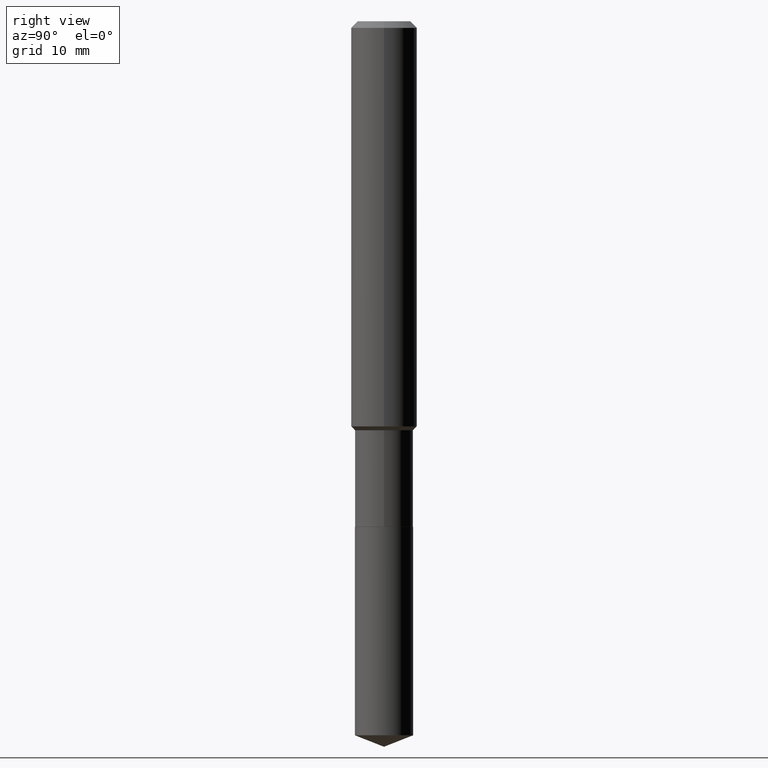
[diagram: clean part render]
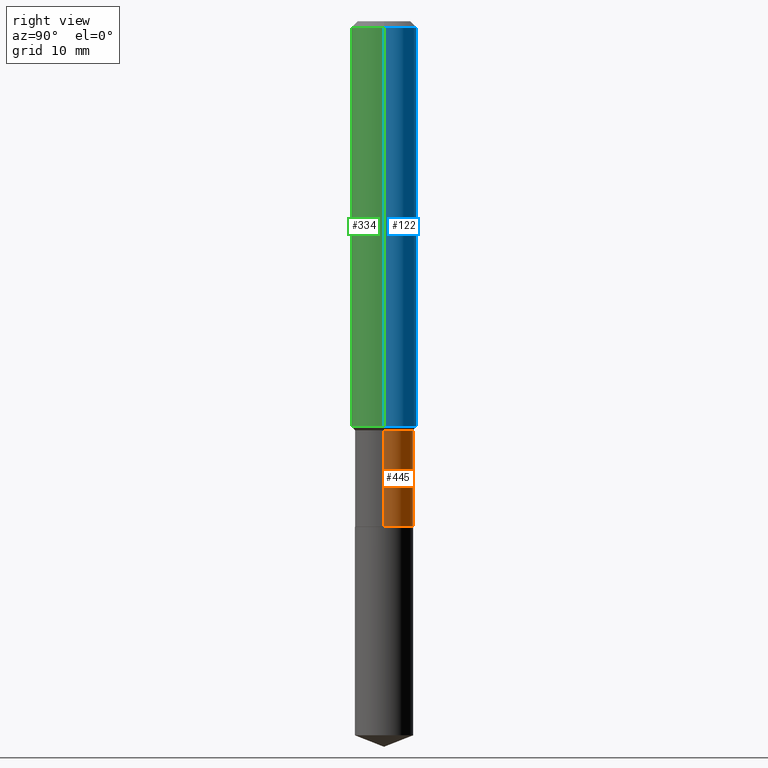
[diagram: same view with three faces highlighted in distinct colors, each labeled with its STEP entity id]
A machine part, right view with three faces highlighted in distinct colors.
Their STEP definitions:

[orange] entity #445 — the highlighted cylindrical surface (edge-blend (fillet) strip) has radius 2.6505 mm, axis along (-0, 0, 1).
#5 = AXIS2_PLACEMENT_3D ( 'NONE', #473, #395, #476 ) ;
#11 = ORIENTED_EDGE ( 'NONE', *, *, #479, .F. ) ;
#30 = VERTEX_POINT ( 'NONE', #33 ) ;
#31 = VERTEX_POINT ( 'NONE', #182 ) ;
#33 = CARTESIAN_POINT ( 'NONE',  ( -0.1043499999999999706, -4.976198495723869965E-15, -1.810499999999999998 ) ) ;
#42 = CIRCLE ( 'NONE', #146, 0.1043499999999999706 ) ;
#53 = LINE ( 'NONE', #187, #134 ) ;
#62 = DIRECTION ( 'NONE',  ( -2.445468806185136597E-29, 3.491481338843145583E-15, 1.000000000000000000 ) ) ;
#64 = ORIENTED_EDGE ( 'NONE', *, *, #421, .F. ) ;
#76 = ORIENTED_EDGE ( 'NONE', *, *, #415, .T. ) ;
#90 = CARTESIAN_POINT ( 'NONE',  ( -0.1043499999999999567, -4.976198495723869965E-15, -1.464699999999999891 ) ) ;
#95 = DIRECTION ( 'NONE',  ( -2.445468806185136877E-29, 3.491481338843145188E-15, 1.000000000000000000 ) ) ;
#134 = VECTOR ( 'NONE', #464, 39.37007874015748143 ) ;
#146 = AXIS2_PLACEMENT_3D ( 'NONE', #392, #362, #481 ) ;
#162 = LINE ( 'NONE', #206, #320 ) ;
#182 = CARTESIAN_POINT ( 'NONE',  ( 0.1043499999999999567, -5.842644872420116125E-15, -1.464699999999999891 ) ) ;
#187 = CARTESIAN_POINT ( 'NONE',  ( -0.1043499999999999706, 7.414513447656643348E-16, -5.132908766680992704E-30 ) ) ;
#206 = CARTESIAN_POINT ( 'NONE',  ( 0.1043499999999999706, -7.286721554165617206E-16, 5.088290465543058008E-30 ) ) ;
#219 = EDGE_CURVE ( 'NONE', #30, #355, #53, .T. ) ;
#233 = CARTESIAN_POINT ( 'NONE',  ( 0.1043499999999999706, -7.049999119392076113E-15, -1.810499999999999998 ) ) ;
#245 = FACE_OUTER_BOUND ( 'NONE', #475, .T. ) ;
#246 = VERTEX_POINT ( 'NONE', #233 ) ;
#279 = DIRECTION ( 'NONE',  ( 1.000000000000000000, -6.982962677686265922E-15, 0.000000000000000000 ) ) ;
#318 = CYLINDRICAL_SURFACE ( 'NONE', #5, 0.1043499999999999706 ) ;
#320 = VECTOR ( 'NONE', #95, 39.37007874015748143 ) ;
#322 = CARTESIAN_POINT ( 'NONE',  ( 3.581878160419369254E-29, -5.113972717003554503E-15, -1.464699999999999891 ) ) ;
#340 = AXIS2_PLACEMENT_3D ( 'NONE', #322, #62, #279 ) ;
#355 = VERTEX_POINT ( 'NONE', #90 ) ;
#362 = DIRECTION ( 'NONE',  ( -2.445468806185136597E-29, 3.491481338843145583E-15, 1.000000000000000000 ) ) ;
#392 = CARTESIAN_POINT ( 'NONE',  ( 4.427521273598189436E-29, -6.321326963975514491E-15, -1.810499999999999998 ) ) ;
#395 = DIRECTION ( 'NONE',  ( -2.445468806185136597E-29, 3.491481338843145583E-15, 1.000000000000000000 ) ) ;
#398 = ORIENTED_EDGE ( 'NONE', *, *, #219, .T. ) ;
#404 = CIRCLE ( 'NONE', #340, 0.1043499999999999567 ) ;
#415 = EDGE_CURVE ( 'NONE', #246, #30, #42, .T. ) ;
#421 = EDGE_CURVE ( 'NONE', #246, #31, #162, .T. ) ;
#445 = ADVANCED_FACE ( 'NONE', ( #245 ), #318, .T. ) ;
#464 = DIRECTION ( 'NONE',  ( -2.445468806185136877E-29, 3.491481338843145188E-15, 1.000000000000000000 ) ) ;
#473 = CARTESIAN_POINT ( 'NONE',  ( 0.000000000000000000, 0.000000000000000000, 0.000000000000000000 ) ) ;
#475 = EDGE_LOOP ( 'NONE', ( #76, #398, #11, #64 ) ) ;
#476 = DIRECTION ( 'NONE',  ( 1.000000000000000000, -6.982962677686266711E-15, 4.876176775795936353E-29 ) ) ;
#479 = EDGE_CURVE ( 'NONE', #31, #355, #404, .T. ) ;
#481 = DIRECTION ( 'NONE',  ( 1.000000000000000000, -6.982962677686265133E-15, 0.000000000000000000 ) ) ;

[blue] entity #122 — the highlighted cylindrical surface (edge-blend (fillet) strip) has radius 2.9997 mm, axis along (-0, 0, 1).
#14 = CARTESIAN_POINT ( 'NONE',  ( 0.1180999999999999966, -9.071566814582237199E-16, -0.02362000000000014088 ) ) ;
#17 = LINE ( 'NONE', #184, #214 ) ;
#22 = EDGE_CURVE ( 'NONE', #45, #278, #484, .T. ) ;
#45 = VERTEX_POINT ( 'NONE', #67 ) ;
#66 = CARTESIAN_POINT ( 'NONE',  ( 0.000000000000000000, 0.000000000000000000, 0.000000000000000000 ) ) ;
#67 = CARTESIAN_POINT ( 'NONE',  ( 0.1181000000000001632, -5.890652740829210234E-15, -1.450949999999999740 ) ) ;
#81 = CARTESIAN_POINT ( 'NONE',  ( 0.1181000000000000799, -8.246878922347486570E-16, 5.758764772215004644E-30 ) ) ;
#91 = ORIENTED_EDGE ( 'NONE', *, *, #332, .T. ) ;
#99 = ORIENTED_EDGE ( 'NONE', *, *, #198, .F. ) ;
#100 = CIRCLE ( 'NONE', #195, 0.1180999999999999966 ) ;
#102 = FACE_OUTER_BOUND ( 'NONE', #128, .T. ) ;
#122 = ADVANCED_FACE ( 'NONE', ( #102 ), #487, .T. ) ;
#128 = EDGE_LOOP ( 'NONE', ( #283, #91, #462, #99 ) ) ;
#155 = DIRECTION ( 'NONE',  ( -2.445468806185136877E-29, 3.491481338843145188E-15, 1.000000000000000000 ) ) ;
#160 = DIRECTION ( 'NONE',  ( -2.445468806185136877E-29, 3.491481338843145188E-15, 1.000000000000000000 ) ) ;
#171 = CARTESIAN_POINT ( 'NONE',  ( 3.548252964334323379E-29, -5.065964848594461182E-15, -1.450949999999999740 ) ) ;
#184 = CARTESIAN_POINT ( 'NONE',  ( -0.1181000000000000799, 8.391509709326788873E-16, -5.809262341591047988E-30 ) ) ;
#195 = AXIS2_PLACEMENT_3D ( 'NONE', #235, #457, #388 ) ;
#198 = EDGE_CURVE ( 'NONE', #45, #252, #349, .T. ) ;
#214 = VECTOR ( 'NONE', #160, 39.37007874015748143 ) ;
#221 = DIRECTION ( 'NONE',  ( 1.000000000000000000, -6.982962677686270655E-15, 0.000000000000000000 ) ) ;
#235 = CARTESIAN_POINT ( 'NONE',  ( 5.776197320209327532E-31, -8.246878922347559293E-17, -0.02362000000000014088 ) ) ;
#252 = VERTEX_POINT ( 'NONE', #14 ) ;
#263 = VECTOR ( 'NONE', #155, 39.37007874015748143 ) ;
#278 = VERTEX_POINT ( 'NONE', #470 ) ;
#283 = ORIENTED_EDGE ( 'NONE', *, *, #22, .T. ) ;
#294 = DIRECTION ( 'NONE',  ( -2.445468806185136597E-29, 3.491481338843145583E-15, 1.000000000000000000 ) ) ;
#330 = EDGE_CURVE ( 'NONE', #252, #482, #100, .T. ) ;
#331 = DIRECTION ( 'NONE',  ( -2.445468806185136597E-29, 3.491481338843145583E-15, 1.000000000000000000 ) ) ;
#332 = EDGE_CURVE ( 'NONE', #278, #482, #17, .T. ) ;
#335 = AXIS2_PLACEMENT_3D ( 'NONE', #66, #294, #408 ) ;
#349 = LINE ( 'NONE', #81, #263 ) ;
#388 = DIRECTION ( 'NONE',  ( 1.000000000000000000, -6.982962677686266711E-15, 0.000000000000000000 ) ) ;
#405 = AXIS2_PLACEMENT_3D ( 'NONE', #171, #331, #221 ) ;
#408 = DIRECTION ( 'NONE',  ( 1.000000000000000000, -6.982962677686266711E-15, 4.876176775795936353E-29 ) ) ;
#441 = CARTESIAN_POINT ( 'NONE',  ( -0.1180999999999999966, -1.735065847976288742E-15, -0.02362000000000014088 ) ) ;
#457 = DIRECTION ( 'NONE',  ( -2.445468806185136597E-29, 3.491481338843145583E-15, 1.000000000000000000 ) ) ;
#462 = ORIENTED_EDGE ( 'NONE', *, *, #330, .F. ) ;
#470 = CARTESIAN_POINT ( 'NONE',  ( -0.1181000000000001632, -4.226813877661781408E-15, -1.450949999999999740 ) ) ;
#482 = VERTEX_POINT ( 'NONE', #441 ) ;
#484 = CIRCLE ( 'NONE', #405, 0.1181000000000001632 ) ;
#487 = CYLINDRICAL_SURFACE ( 'NONE', #335, 0.1181000000000000799 ) ;

[green] entity #334 — the highlighted cylindrical surface (edge-blend (fillet) strip) has radius 2.9997 mm, axis along (-0, 0, 1).
#12 = DIRECTION ( 'NONE',  ( -2.445468806185136597E-29, 3.491481338843145583E-15, 1.000000000000000000 ) ) ;
#14 = CARTESIAN_POINT ( 'NONE',  ( 0.1180999999999999966, -9.071566814582237199E-16, -0.02362000000000014088 ) ) ;
#17 = LINE ( 'NONE', #184, #214 ) ;
#34 = DIRECTION ( 'NONE',  ( 1.000000000000000000, -6.982962677686270655E-15, 0.000000000000000000 ) ) ;
#37 = AXIS2_PLACEMENT_3D ( 'NONE', #452, #72, #34 ) ;
#45 = VERTEX_POINT ( 'NONE', #67 ) ;
#50 = DIRECTION ( 'NONE',  ( 1.000000000000000000, -6.982962677686266711E-15, 0.000000000000000000 ) ) ;
#67 = CARTESIAN_POINT ( 'NONE',  ( 0.1181000000000001632, -5.890652740829210234E-15, -1.450949999999999740 ) ) ;
#72 = DIRECTION ( 'NONE',  ( -2.445468806185136597E-29, 3.491481338843145583E-15, 1.000000000000000000 ) ) ;
#81 = CARTESIAN_POINT ( 'NONE',  ( 0.1181000000000000799, -8.246878922347486570E-16, 5.758764772215004644E-30 ) ) ;
#92 = AXIS2_PLACEMENT_3D ( 'NONE', #386, #12, #50 ) ;
#110 = CARTESIAN_POINT ( 'NONE',  ( 0.000000000000000000, 0.000000000000000000, 0.000000000000000000 ) ) ;
#118 = CYLINDRICAL_SURFACE ( 'NONE', #378, 0.1181000000000000799 ) ;
#155 = DIRECTION ( 'NONE',  ( -2.445468806185136877E-29, 3.491481338843145188E-15, 1.000000000000000000 ) ) ;
#160 = DIRECTION ( 'NONE',  ( -2.445468806185136877E-29, 3.491481338843145188E-15, 1.000000000000000000 ) ) ;
#173 = EDGE_CURVE ( 'NONE', #278, #45, #176, .T. ) ;
#176 = CIRCLE ( 'NONE', #37, 0.1181000000000001632 ) ;
#184 = CARTESIAN_POINT ( 'NONE',  ( -0.1181000000000000799, 8.391509709326788873E-16, -5.809262341591047988E-30 ) ) ;
#198 = EDGE_CURVE ( 'NONE', #45, #252, #349, .T. ) ;
#202 = ORIENTED_EDGE ( 'NONE', *, *, #280, .F. ) ;
#214 = VECTOR ( 'NONE', #160, 39.37007874015748143 ) ;
#252 = VERTEX_POINT ( 'NONE', #14 ) ;
#260 = DIRECTION ( 'NONE',  ( -2.445468806185136597E-29, 3.491481338843145583E-15, 1.000000000000000000 ) ) ;
#263 = VECTOR ( 'NONE', #155, 39.37007874015748143 ) ;
#278 = VERTEX_POINT ( 'NONE', #470 ) ;
#280 = EDGE_CURVE ( 'NONE', #482, #252, #295, .T. ) ;
#295 = CIRCLE ( 'NONE', #92, 0.1180999999999999966 ) ;
#314 = FACE_OUTER_BOUND ( 'NONE', #346, .T. ) ;
#319 = ORIENTED_EDGE ( 'NONE', *, *, #198, .T. ) ;
#332 = EDGE_CURVE ( 'NONE', #278, #482, #17, .T. ) ;
#334 = ADVANCED_FACE ( 'NONE', ( #314 ), #118, .T. ) ;
#346 = EDGE_LOOP ( 'NONE', ( #416, #468, #319, #202 ) ) ;
#349 = LINE ( 'NONE', #81, #263 ) ;
#378 = AXIS2_PLACEMENT_3D ( 'NONE', #110, #260, #414 ) ;
#386 = CARTESIAN_POINT ( 'NONE',  ( 5.776197320209327532E-31, -8.246878922347559293E-17, -0.02362000000000014088 ) ) ;
#414 = DIRECTION ( 'NONE',  ( 1.000000000000000000, -6.982962677686266711E-15, 4.876176775795936353E-29 ) ) ;
#416 = ORIENTED_EDGE ( 'NONE', *, *, #332, .F. ) ;
#441 = CARTESIAN_POINT ( 'NONE',  ( -0.1180999999999999966, -1.735065847976288742E-15, -0.02362000000000014088 ) ) ;
#452 = CARTESIAN_POINT ( 'NONE',  ( 3.548252964334323379E-29, -5.065964848594461182E-15, -1.450949999999999740 ) ) ;
#468 = ORIENTED_EDGE ( 'NONE', *, *, #173, .T. ) ;
#470 = CARTESIAN_POINT ( 'NONE',  ( -0.1181000000000001632, -4.226813877661781408E-15, -1.450949999999999740 ) ) ;
#482 = VERTEX_POINT ( 'NONE', #441 ) ;